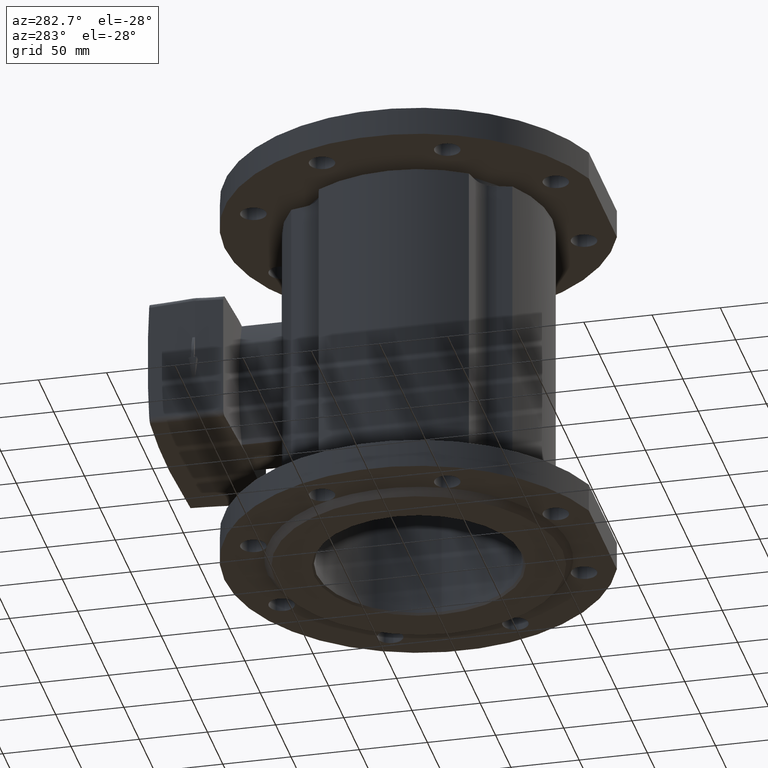
[diagram: clean part render]
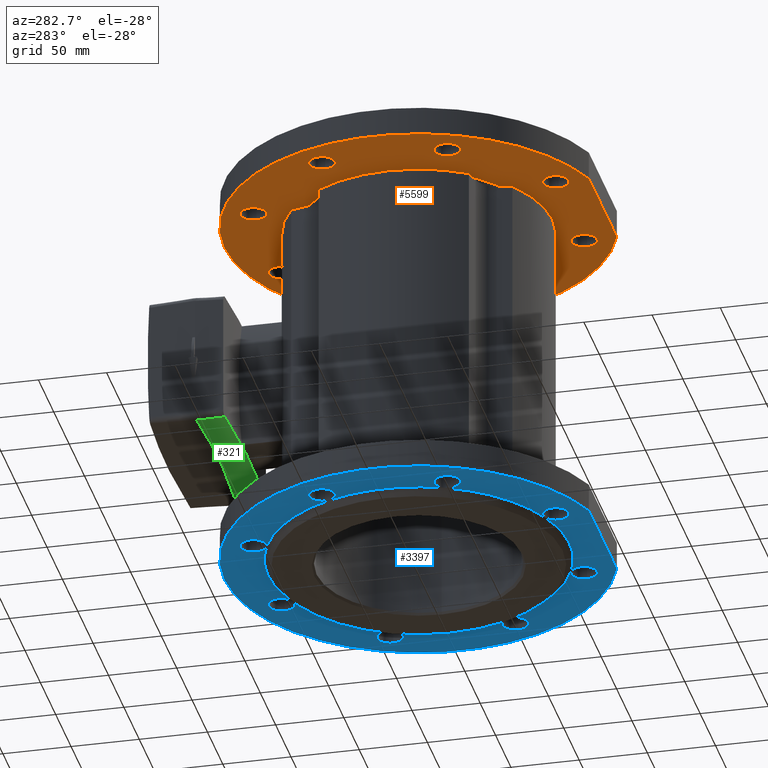
[diagram: same view with three faces highlighted in distinct colors, each labeled with its STEP entity id]
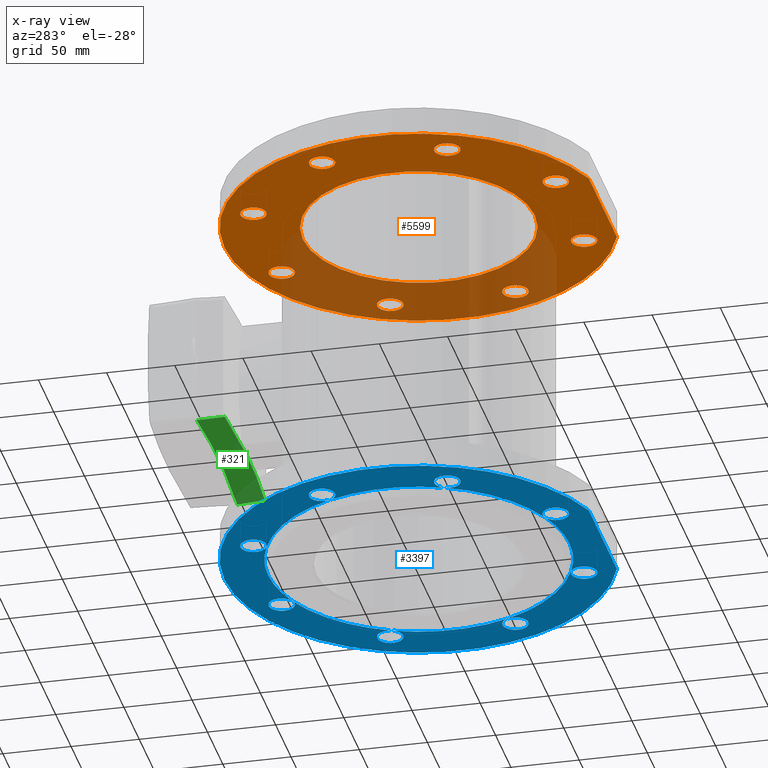
[diagram: x-ray of the same camera — body ghosted, the three highlighted faces saturated]
A machine part, auxiliary view with three faces highlighted in distinct colors.
The next image is the same camera in x-ray (body ghosted, the three faces saturated) — at least one of them is partly hidden behind the body in this view.
Their STEP definitions:

[orange] entity #5599 — the highlighted planar face has unit normal (0, -0, -1).
#11 = PLANE ( 'NONE',  #1680 ) ;
#12 = VERTEX_POINT ( 'NONE', #2074 ) ;
#20 = DIRECTION ( 'NONE',  ( 1.000000000000000000, 0.0000000000000000000, 0.0000000000000000000 ) ) ;
#40 = DIRECTION ( 'NONE',  ( -0.0000000000000000000, -2.925615526614575854E-17, -1.000000000000000000 ) ) ;
#59 = DIRECTION ( 'NONE',  ( -0.0000000000000000000, -2.925615526614575854E-17, -1.000000000000000000 ) ) ;
#74 = AXIS2_PLACEMENT_3D ( 'NONE', #4614, #4555, #2000 ) ;
#140 = DIRECTION ( 'NONE',  ( 0.0000000000000000000, -2.925615526614575854E-17, -1.000000000000000000 ) ) ;
#153 = CARTESIAN_POINT ( 'NONE',  ( -110.8655439013391515, -45.92201188381653765, 123.9999999999999432 ) ) ;
#154 = AXIS2_PLACEMENT_3D ( 'NONE', #5292, #632, #6285 ) ;
#197 = DIRECTION ( 'NONE',  ( -0.0000000000000000000, -2.925615526614575854E-17, -1.000000000000000000 ) ) ;
#200 = CARTESIAN_POINT ( 'NONE',  ( 120.3655439013696338, -45.92201188379594612, 123.9999999999999432 ) ) ;
#215 = DIRECTION ( 'NONE',  ( 0.0000000000000000000, 1.000000000000000000, 0.0000000000000000000 ) ) ;
#222 = ORIENTED_EDGE ( 'NONE', *, *, #4235, .F. ) ;
#249 = CARTESIAN_POINT ( 'NONE',  ( -120.3655439013477064, 45.92201188380499843, 123.9999999999999432 ) ) ;
#317 = DIRECTION ( 'NONE',  ( -0.0000000000000000000, -2.925615526614575854E-17, -1.000000000000000000 ) ) ;
#368 = AXIS2_PLACEMENT_3D ( 'NONE', #2613, #1588, #5136 ) ;
#374 = DIRECTION ( 'NONE',  ( 0.0000000000000000000, 1.000000000000000000, 0.0000000000000000000 ) ) ;
#402 = CIRCLE ( 'NONE', #2098, 9.499999999999994671 ) ;
#421 = CARTESIAN_POINT ( 'NONE',  ( 0.0000000000000000000, 3.627763253002072309E-15, 123.9999999999999574 ) ) ;
#445 = EDGE_CURVE ( 'NONE', #2967, #5342, #997, .T. ) ;
#483 = EDGE_CURVE ( 'NONE', #520, #1567, #3448, .T. ) ;
#485 = EDGE_LOOP ( 'NONE', ( #2946, #1189 ) ) ;
#490 = CIRCLE ( 'NONE', #2095, 9.499999999999994671 ) ;
#492 = EDGE_CURVE ( 'NONE', #3572, #2052, #3876, .T. ) ;
#520 = VERTEX_POINT ( 'NONE', #4407 ) ;
#523 = FACE_BOUND ( 'NONE', #485, .T. ) ;
#550 = FACE_BOUND ( 'NONE', #4692, .T. ) ;
#551 = EDGE_LOOP ( 'NONE', ( #1008, #5395 ) ) ;
#621 = FACE_BOUND ( 'NONE', #3066, .T. ) ;
#632 = DIRECTION ( 'NONE',  ( -0.0000000000000000000, -2.925615526614575854E-17, -1.000000000000000000 ) ) ;
#682 = AXIS2_PLACEMENT_3D ( 'NONE', #2381, #900, #3409 ) ;
#757 = CARTESIAN_POINT ( 'NONE',  ( 55.42201188381146437, 110.8655439013632105, 123.9999999999999432 ) ) ;
#900 = DIRECTION ( 'NONE',  ( -0.0000000000000000000, -2.925615526614575854E-17, -1.000000000000000000 ) ) ;
#905 = AXIS2_PLACEMENT_3D ( 'NONE', #5667, #1518, #4677 ) ;
#962 = ORIENTED_EDGE ( 'NONE', *, *, #2567, .F. ) ;
#997 = CIRCLE ( 'NONE', #3553, 9.499999999999994671 ) ;
#1003 = AXIS2_PLACEMENT_3D ( 'NONE', #3898, #1265, #2774 ) ;
#1008 = ORIENTED_EDGE ( 'NONE', *, *, #483, .F. ) ;
#1063 = LINE ( 'NONE', #4562, #1996 ) ;
#1118 = EDGE_CURVE ( 'NONE', #2247, #2813, #2609, .T. ) ;
#1124 = ORIENTED_EDGE ( 'NONE', *, *, #1661, .F. ) ;
#1128 = CIRCLE ( 'NONE', #905, 9.499999999999994671 ) ;
#1132 = ORIENTED_EDGE ( 'NONE', *, *, #2007, .F. ) ;
#1167 = EDGE_CURVE ( 'NONE', #5135, #2247, #1762, .T. ) ;
#1189 = ORIENTED_EDGE ( 'NONE', *, *, #2722, .F. ) ;
#1190 = VERTEX_POINT ( 'NONE', #5792 ) ;
#1205 = VERTEX_POINT ( 'NONE', #757 ) ;
#1229 = EDGE_CURVE ( 'NONE', #2052, #3572, #4307, .T. ) ;
#1235 = AXIS2_PLACEMENT_3D ( 'NONE', #4348, #3848, #215 ) ;
#1265 = DIRECTION ( 'NONE',  ( -0.0000000000000000000, -2.925615526614575854E-17, -1.000000000000000000 ) ) ;
#1344 = CARTESIAN_POINT ( 'NONE',  ( -110.8655439013391515, -45.92201188381653765, 123.9999999999999432 ) ) ;
#1367 = ORIENTED_EDGE ( 'NONE', *, *, #1598, .F. ) ;
#1518 = DIRECTION ( 'NONE',  ( -0.0000000000000000000, -2.925615526614575854E-17, -1.000000000000000000 ) ) ;
#1567 = VERTEX_POINT ( 'NONE', #249 ) ;
#1583 = VERTEX_POINT ( 'NONE', #2825 ) ;
#1588 = DIRECTION ( 'NONE',  ( -0.0000000000000000000, -2.925615526614575854E-17, -1.000000000000000000 ) ) ;
#1598 = EDGE_CURVE ( 'NONE', #4265, #3329, #4410, .T. ) ;
#1657 = FACE_BOUND ( 'NONE', #5338, .T. ) ;
#1661 = EDGE_CURVE ( 'NONE', #12, #6030, #5364, .T. ) ;
#1680 = AXIS2_PLACEMENT_3D ( 'NONE', #3722, #140, #2062 ) ;
#1724 = ORIENTED_EDGE ( 'NONE', *, *, #1167, .T. ) ;
#1738 = DIRECTION ( 'NONE',  ( 0.0000000000000000000, 1.000000000000000000, 0.0000000000000000000 ) ) ;
#1762 = CIRCLE ( 'NONE', #6318, 142.4999999999999716 ) ;
#1765 = EDGE_LOOP ( 'NONE', ( #4870, #2666 ) ) ;
#1771 = CARTESIAN_POINT ( 'NONE',  ( -55.42201188378950860, -110.8655439013541439, 123.9999999999999432 ) ) ;
#1819 = DIRECTION ( 'NONE',  ( -0.0000000000000000000, -2.925615526614575854E-17, -1.000000000000000000 ) ) ;
#1854 = AXIS2_PLACEMENT_3D ( 'NONE', #3440, #1819, #1918 ) ;
#1918 = DIRECTION ( 'NONE',  ( 0.0000000000000000000, 1.000000000000000000, 0.0000000000000000000 ) ) ;
#1996 = VECTOR ( 'NONE', #20, 1000.000000000000000 ) ;
#2000 = DIRECTION ( 'NONE',  ( 0.0000000000000000000, 1.000000000000000000, 0.0000000000000000000 ) ) ;
#2007 = EDGE_CURVE ( 'NONE', #5210, #6402, #5901, .T. ) ;
#2009 = CIRCLE ( 'NONE', #4447, 84.99999999999998579 ) ;
#2049 = DIRECTION ( 'NONE',  ( -0.0000000000000000000, -2.925615526614575854E-17, -1.000000000000000000 ) ) ;
#2052 = VERTEX_POINT ( 'NONE', #1771 ) ;
#2062 = DIRECTION ( 'NONE',  ( 0.0000000000000000000, 1.000000000000000000, -2.925615526614575854E-17 ) ) ;
#2074 = CARTESIAN_POINT ( 'NONE',  ( -55.42201188381007881, 110.8655439013546840, 123.9999999999999432 ) ) ;
#2095 = AXIS2_PLACEMENT_3D ( 'NONE', #3851, #5875, #2852 ) ;
#2098 = AXIS2_PLACEMENT_3D ( 'NONE', #2585, #40, #4510 ) ;
#2151 = CARTESIAN_POINT ( 'NONE',  ( 45.62071897723644298, -135.0000000000000000, 124.0000000000000000 ) ) ;
#2225 = CARTESIAN_POINT ( 'NONE',  ( 36.42201188381144306, 110.8655439013632105, 123.9999999999999432 ) ) ;
#2247 = VERTEX_POINT ( 'NONE', #6115 ) ;
#2381 = CARTESIAN_POINT ( 'NONE',  ( -110.8655439013477206, 45.92201188380499843, 123.9999999999999432 ) ) ;
#2424 = AXIS2_PLACEMENT_3D ( 'NONE', #421, #2989, #5479 ) ;
#2486 = DIRECTION ( 'NONE',  ( -0.0000000000000000000, -2.925615526614575854E-17, -1.000000000000000000 ) ) ;
#2567 = EDGE_CURVE ( 'NONE', #6030, #12, #490, .T. ) ;
#2585 = CARTESIAN_POINT ( 'NONE',  ( 110.8655439013611073, 45.92201188382560417, 123.9999999999999432 ) ) ;
#2586 = ORIENTED_EDGE ( 'NONE', *, *, #6052, .F. ) ;
#2590 = FACE_OUTER_BOUND ( 'NONE', #3760, .T. ) ;
#2594 = EDGE_CURVE ( 'NONE', #1567, #520, #4109, .T. ) ;
#2609 = CIRCLE ( 'NONE', #3882, 142.4999999999999716 ) ;
#2613 = CARTESIAN_POINT ( 'NONE',  ( -45.92201188381008592, 110.8655439013546840, 123.9999999999999432 ) ) ;
#2636 = CIRCLE ( 'NONE', #2845, 9.499999999999994671 ) ;
#2666 = ORIENTED_EDGE ( 'NONE', *, *, #1229, .F. ) ;
#2722 = EDGE_CURVE ( 'NONE', #5179, #1205, #5806, .T. ) ;
#2743 = AXIS2_PLACEMENT_3D ( 'NONE', #153, #3263, #2793 ) ;
#2774 = DIRECTION ( 'NONE',  ( 0.0000000000000000000, 1.000000000000000000, 0.0000000000000000000 ) ) ;
#2793 = DIRECTION ( 'NONE',  ( 0.0000000000000000000, 1.000000000000000000, 0.0000000000000000000 ) ) ;
#2813 = VERTEX_POINT ( 'NONE', #2151 ) ;
#2822 = DIRECTION ( 'NONE',  ( 0.0000000000000000000, 1.000000000000000000, 0.0000000000000000000 ) ) ;
#2825 = CARTESIAN_POINT ( 'NONE',  ( 36.42201188383204169, -110.8655439013456032, 123.9999999999999432 ) ) ;
#2839 = EDGE_CURVE ( 'NONE', #3329, #4265, #1128, .T. ) ;
#2845 = AXIS2_PLACEMENT_3D ( 'NONE', #6596, #2049, #4072 ) ;
#2852 = DIRECTION ( 'NONE',  ( 0.0000000000000000000, 1.000000000000000000, 0.0000000000000000000 ) ) ;
#2938 = AXIS2_PLACEMENT_3D ( 'NONE', #5009, #2486, #374 ) ;
#2946 = ORIENTED_EDGE ( 'NONE', *, *, #4800, .F. ) ;
#2967 = VERTEX_POINT ( 'NONE', #5361 ) ;
#2989 = DIRECTION ( 'NONE',  ( -0.0000000000000000000, -2.925615526614575854E-17, -1.000000000000000000 ) ) ;
#3016 = ORIENTED_EDGE ( 'NONE', *, *, #3571, .F. ) ;
#3066 = EDGE_LOOP ( 'NONE', ( #6227, #222 ) ) ;
#3088 = FACE_BOUND ( 'NONE', #1765, .T. ) ;
#3133 = CARTESIAN_POINT ( 'NONE',  ( 0.0000000000000000000, 3.627763253002073098E-15, 123.9999999999999858 ) ) ;
#3263 = DIRECTION ( 'NONE',  ( -0.0000000000000000000, -2.925615526614575854E-17, -1.000000000000000000 ) ) ;
#3329 = VERTEX_POINT ( 'NONE', #6290 ) ;
#3409 = DIRECTION ( 'NONE',  ( 0.0000000000000000000, 1.000000000000000000, 0.0000000000000000000 ) ) ;
#3440 = CARTESIAN_POINT ( 'NONE',  ( -45.92201188378950860, -110.8655439013541439, 123.9999999999999432 ) ) ;
#3448 = CIRCLE ( 'NONE', #682, 9.499999999999994671 ) ;
#3479 = ORIENTED_EDGE ( 'NONE', *, *, #445, .F. ) ;
#3481 = CIRCLE ( 'NONE', #2743, 9.499999999999994671 ) ;
#3485 = DIRECTION ( 'NONE',  ( 0.0000000000000000000, 1.000000000000000000, 0.0000000000000000000 ) ) ;
#3517 = DIRECTION ( 'NONE',  ( -0.0000000000000000000, -2.925615526614575854E-17, -1.000000000000000000 ) ) ;
#3553 = AXIS2_PLACEMENT_3D ( 'NONE', #1344, #4933, #5434 ) ;
#3567 = VERTEX_POINT ( 'NONE', #4134 ) ;
#3571 = EDGE_CURVE ( 'NONE', #5135, #2813, #1063, .T. ) ;
#3572 = VERTEX_POINT ( 'NONE', #4034 ) ;
#3696 = CIRCLE ( 'NONE', #4970, 9.499999999999994671 ) ;
#3698 = EDGE_CURVE ( 'NONE', #5342, #2967, #3481, .T. ) ;
#3722 = CARTESIAN_POINT ( 'NONE',  ( 0.0000000000000000000, 84.99999999999998579, 123.9999999999999716 ) ) ;
#3760 = EDGE_LOOP ( 'NONE', ( #3016, #1724, #5042 ) ) ;
#3809 = EDGE_LOOP ( 'NONE', ( #1367, #5547 ) ) ;
#3848 = DIRECTION ( 'NONE',  ( -0.0000000000000000000, -2.925615526614575854E-17, -1.000000000000000000 ) ) ;
#3851 = CARTESIAN_POINT ( 'NONE',  ( -45.92201188381008592, 110.8655439013546840, 123.9999999999999432 ) ) ;
#3876 = CIRCLE ( 'NONE', #1854, 9.500000000000008882 ) ;
#3882 = AXIS2_PLACEMENT_3D ( 'NONE', #3133, #59, #4729 ) ;
#3898 = CARTESIAN_POINT ( 'NONE',  ( -45.92201188378950860, -110.8655439013541439, 123.9999999999999432 ) ) ;
#3913 = CIRCLE ( 'NONE', #2424, 84.99999999999998579 ) ;
#3972 = EDGE_LOOP ( 'NONE', ( #962, #1124 ) ) ;
#4034 = CARTESIAN_POINT ( 'NONE',  ( -36.42201188378950150, -110.8655439013541439, 123.9999999999999432 ) ) ;
#4072 = DIRECTION ( 'NONE',  ( 0.0000000000000000000, 1.000000000000000000, 0.0000000000000000000 ) ) ;
#4080 = CARTESIAN_POINT ( 'NONE',  ( -45.62071897723643588, -135.0000000000000000, 124.0000000000000000 ) ) ;
#4109 = CIRCLE ( 'NONE', #1235, 9.499999999999994671 ) ;
#4134 = CARTESIAN_POINT ( 'NONE',  ( 0.0000000000000000000, 84.99999999999998579, 123.9999999999999574 ) ) ;
#4235 = EDGE_CURVE ( 'NONE', #1583, #1190, #2636, .T. ) ;
#4265 = VERTEX_POINT ( 'NONE', #200 ) ;
#4307 = CIRCLE ( 'NONE', #1003, 9.500000000000008882 ) ;
#4348 = CARTESIAN_POINT ( 'NONE',  ( -110.8655439013477206, 45.92201188380499843, 123.9999999999999432 ) ) ;
#4407 = CARTESIAN_POINT ( 'NONE',  ( -101.3655439013477206, 45.92201188380499843, 123.9999999999999432 ) ) ;
#4410 = CIRCLE ( 'NONE', #6220, 9.499999999999994671 ) ;
#4447 = AXIS2_PLACEMENT_3D ( 'NONE', #5080, #3517, #3485 ) ;
#4451 = CARTESIAN_POINT ( 'NONE',  ( -36.42201188381009302, 110.8655439013546840, 123.9999999999999432 ) ) ;
#4510 = DIRECTION ( 'NONE',  ( 0.0000000000000000000, 1.000000000000000000, 0.0000000000000000000 ) ) ;
#4555 = DIRECTION ( 'NONE',  ( -0.0000000000000000000, -2.925615526614575854E-17, -1.000000000000000000 ) ) ;
#4562 = CARTESIAN_POINT ( 'NONE',  ( 0.0000000000000000000, -135.0000000000000000, 123.9999999999999716 ) ) ;
#4612 = FACE_BOUND ( 'NONE', #3972, .T. ) ;
#4614 = CARTESIAN_POINT ( 'NONE',  ( 45.92201188381145016, 110.8655439013632105, 123.9999999999999432 ) ) ;
#4677 = DIRECTION ( 'NONE',  ( 0.0000000000000000000, 1.000000000000000000, 0.0000000000000000000 ) ) ;
#4692 = EDGE_LOOP ( 'NONE', ( #6425, #1132 ) ) ;
#4710 = CARTESIAN_POINT ( 'NONE',  ( 101.3655439013611073, 45.92201188382560417, 123.9999999999999432 ) ) ;
#4729 = DIRECTION ( 'NONE',  ( 0.0000000000000000000, 1.000000000000000000, 0.0000000000000000000 ) ) ;
#4800 = EDGE_CURVE ( 'NONE', #1205, #5179, #5502, .T. ) ;
#4847 = CARTESIAN_POINT ( 'NONE',  ( 110.8655439013696480, -45.92201188379594612, 123.9999999999999432 ) ) ;
#4870 = ORIENTED_EDGE ( 'NONE', *, *, #492, .F. ) ;
#4907 = DIRECTION ( 'NONE',  ( -0.0000000000000000000, -2.925615526614575854E-17, -1.000000000000000000 ) ) ;
#4933 = DIRECTION ( 'NONE',  ( -0.0000000000000000000, -2.925615526614575854E-17, -1.000000000000000000 ) ) ;
#4970 = AXIS2_PLACEMENT_3D ( 'NONE', #5947, #4907, #2822 ) ;
#5009 = CARTESIAN_POINT ( 'NONE',  ( 45.92201188381145016, 110.8655439013632105, 123.9999999999999432 ) ) ;
#5042 = ORIENTED_EDGE ( 'NONE', *, *, #1118, .T. ) ;
#5075 = EDGE_CURVE ( 'NONE', #6402, #5210, #402, .T. ) ;
#5080 = CARTESIAN_POINT ( 'NONE',  ( 0.0000000000000000000, 3.627763253002072309E-15, 123.9999999999999574 ) ) ;
#5135 = VERTEX_POINT ( 'NONE', #4080 ) ;
#5136 = DIRECTION ( 'NONE',  ( 0.0000000000000000000, 1.000000000000000000, 0.0000000000000000000 ) ) ;
#5143 = FACE_BOUND ( 'NONE', #551, .T. ) ;
#5179 = VERTEX_POINT ( 'NONE', #2225 ) ;
#5210 = VERTEX_POINT ( 'NONE', #4710 ) ;
#5258 = CARTESIAN_POINT ( 'NONE',  ( 0.0000000000000000000, 3.627763253002073098E-15, 123.9999999999999858 ) ) ;
#5292 = CARTESIAN_POINT ( 'NONE',  ( 110.8655439013611073, 45.92201188382560417, 123.9999999999999432 ) ) ;
#5338 = EDGE_LOOP ( 'NONE', ( #6245, #3479 ) ) ;
#5342 = VERTEX_POINT ( 'NONE', #5993 ) ;
#5361 = CARTESIAN_POINT ( 'NONE',  ( -120.3655439013391515, -45.92201188381653765, 123.9999999999999432 ) ) ;
#5364 = CIRCLE ( 'NONE', #368, 9.499999999999994671 ) ;
#5395 = ORIENTED_EDGE ( 'NONE', *, *, #2594, .F. ) ;
#5432 = EDGE_LOOP ( 'NONE', ( #6289, #2586 ) ) ;
#5434 = DIRECTION ( 'NONE',  ( 0.0000000000000000000, 1.000000000000000000, 0.0000000000000000000 ) ) ;
#5469 = EDGE_CURVE ( 'NONE', #3567, #5870, #3913, .T. ) ;
#5479 = DIRECTION ( 'NONE',  ( 0.0000000000000000000, 1.000000000000000000, 0.0000000000000000000 ) ) ;
#5502 = CIRCLE ( 'NONE', #74, 9.500000000000008882 ) ;
#5547 = ORIENTED_EDGE ( 'NONE', *, *, #2839, .F. ) ;
#5599 = ADVANCED_FACE ( 'NONE', ( #1657, #3088, #621, #6179, #2590, #523, #550, #5143, #4612, #5674 ), #11, .T. ) ;
#5667 = CARTESIAN_POINT ( 'NONE',  ( 110.8655439013696480, -45.92201188379594612, 123.9999999999999432 ) ) ;
#5674 = FACE_BOUND ( 'NONE', #5432, .T. ) ;
#5792 = CARTESIAN_POINT ( 'NONE',  ( 55.42201188383204169, -110.8655439013456032, 123.9999999999999432 ) ) ;
#5806 = CIRCLE ( 'NONE', #2938, 9.500000000000008882 ) ;
#5819 = DIRECTION ( 'NONE',  ( 0.0000000000000000000, 1.000000000000000000, 0.0000000000000000000 ) ) ;
#5870 = VERTEX_POINT ( 'NONE', #6153 ) ;
#5875 = DIRECTION ( 'NONE',  ( -0.0000000000000000000, -2.925615526614575854E-17, -1.000000000000000000 ) ) ;
#5901 = CIRCLE ( 'NONE', #154, 9.499999999999994671 ) ;
#5947 = CARTESIAN_POINT ( 'NONE',  ( 45.92201188383204169, -110.8655439013456032, 123.9999999999999432 ) ) ;
#5967 = EDGE_CURVE ( 'NONE', #1190, #1583, #3696, .T. ) ;
#5969 = CARTESIAN_POINT ( 'NONE',  ( 120.3655439013611073, 45.92201188382560417, 123.9999999999999432 ) ) ;
#5993 = CARTESIAN_POINT ( 'NONE',  ( -101.3655439013391515, -45.92201188381653765, 123.9999999999999432 ) ) ;
#6030 = VERTEX_POINT ( 'NONE', #4451 ) ;
#6052 = EDGE_CURVE ( 'NONE', #5870, #3567, #2009, .T. ) ;
#6115 = CARTESIAN_POINT ( 'NONE',  ( 0.0000000000000000000, 142.4999999999999716, 123.9999999999999858 ) ) ;
#6153 = CARTESIAN_POINT ( 'NONE',  ( 1.040949779275250021E-14, -84.99999999999998579, 123.9999999999999574 ) ) ;
#6179 = FACE_BOUND ( 'NONE', #3809, .T. ) ;
#6220 = AXIS2_PLACEMENT_3D ( 'NONE', #4847, #317, #5819 ) ;
#6227 = ORIENTED_EDGE ( 'NONE', *, *, #5967, .F. ) ;
#6245 = ORIENTED_EDGE ( 'NONE', *, *, #3698, .F. ) ;
#6285 = DIRECTION ( 'NONE',  ( 0.0000000000000000000, 1.000000000000000000, 0.0000000000000000000 ) ) ;
#6289 = ORIENTED_EDGE ( 'NONE', *, *, #5469, .F. ) ;
#6290 = CARTESIAN_POINT ( 'NONE',  ( 101.3655439013696480, -45.92201188379594612, 123.9999999999999432 ) ) ;
#6318 = AXIS2_PLACEMENT_3D ( 'NONE', #5258, #197, #1738 ) ;
#6402 = VERTEX_POINT ( 'NONE', #5969 ) ;
#6425 = ORIENTED_EDGE ( 'NONE', *, *, #5075, .F. ) ;
#6596 = CARTESIAN_POINT ( 'NONE',  ( 45.92201188383204169, -110.8655439013456032, 123.9999999999999432 ) ) ;

[blue] entity #3397 — the highlighted planar face has unit normal (0, -0, -1).
#35 = ORIENTED_EDGE ( 'NONE', *, *, #1004, .F. ) ;
#38 = AXIS2_PLACEMENT_3D ( 'NONE', #5970, #1410, #2945 ) ;
#81 = DIRECTION ( 'NONE',  ( -0.0000000000000000000, -2.925615526614575854E-17, -1.000000000000000000 ) ) ;
#94 = ORIENTED_EDGE ( 'NONE', *, *, #5652, .F. ) ;
#122 = DIRECTION ( 'NONE',  ( -0.0000000000000000000, -2.925615526614575854E-17, -1.000000000000000000 ) ) ;
#145 = AXIS2_PLACEMENT_3D ( 'NONE', #3168, #122, #5225 ) ;
#178 = AXIS2_PLACEMENT_3D ( 'NONE', #1564, #3959, #3524 ) ;
#189 = ORIENTED_EDGE ( 'NONE', *, *, #531, .F. ) ;
#236 = EDGE_CURVE ( 'NONE', #2005, #5539, #2588, .T. ) ;
#245 = DIRECTION ( 'NONE',  ( 0.0000000000000000000, 1.000000000000000000, 0.0000000000000000000 ) ) ;
#246 = CARTESIAN_POINT ( 'NONE',  ( -45.92201188378950860, -110.8655439013541439, -144.9999999999999716 ) ) ;
#261 = PLANE ( 'NONE',  #3904 ) ;
#270 = AXIS2_PLACEMENT_3D ( 'NONE', #418, #3381, #805 ) ;
#278 = DIRECTION ( 'NONE',  ( -0.0000000000000000000, -2.925615526614575854E-17, -1.000000000000000000 ) ) ;
#284 = CARTESIAN_POINT ( 'NONE',  ( -120.3655439013391515, -45.92201188381653765, -144.9999999999999716 ) ) ;
#291 = AXIS2_PLACEMENT_3D ( 'NONE', #1493, #1389, #6013 ) ;
#406 = VERTEX_POINT ( 'NONE', #4376 ) ;
#418 = CARTESIAN_POINT ( 'NONE',  ( 0.0000000000000000000, -4.242142513591133356E-15, -144.9999999999999716 ) ) ;
#422 = VERTEX_POINT ( 'NONE', #4901 ) ;
#499 = DIRECTION ( 'NONE',  ( 0.0000000000000000000, 1.000000000000000000, 0.0000000000000000000 ) ) ;
#501 = CIRCLE ( 'NONE', #3373, 9.499999999999994671 ) ;
#531 = EDGE_CURVE ( 'NONE', #881, #406, #5038, .T. ) ;
#543 = VERTEX_POINT ( 'NONE', #1848 ) ;
#547 = EDGE_CURVE ( 'NONE', #5129, #5787, #2075, .T. ) ;
#595 = DIRECTION ( 'NONE',  ( -0.0000000000000000000, -2.925615526614575854E-17, -1.000000000000000000 ) ) ;
#610 = DIRECTION ( 'NONE',  ( 0.0000000000000000000, 1.000000000000000000, 0.0000000000000000000 ) ) ;
#617 = CIRCLE ( 'NONE', #4341, 9.499999999999994671 ) ;
#622 = VERTEX_POINT ( 'NONE', #3974 ) ;
#711 = ORIENTED_EDGE ( 'NONE', *, *, #2473, .F. ) ;
#717 = CARTESIAN_POINT ( 'NONE',  ( 120.3655439013696338, -45.92201188379594612, -144.9999999999999716 ) ) ;
#738 = ORIENTED_EDGE ( 'NONE', *, *, #4519, .T. ) ;
#739 = CARTESIAN_POINT ( 'NONE',  ( 45.92201188381145016, 110.8655439013632105, -144.9999999999999716 ) ) ;
#759 = FACE_OUTER_BOUND ( 'NONE', #1486, .T. ) ;
#765 = DIRECTION ( 'NONE',  ( -0.0000000000000000000, -2.925615526614575854E-17, -1.000000000000000000 ) ) ;
#782 = CIRCLE ( 'NONE', #145, 9.499999999999994671 ) ;
#804 = AXIS2_PLACEMENT_3D ( 'NONE', #958, #3068, #499 ) ;
#805 = DIRECTION ( 'NONE',  ( 0.0000000000000000000, 1.000000000000000000, 0.0000000000000000000 ) ) ;
#807 = AXIS2_PLACEMENT_3D ( 'NONE', #5230, #2215, #4242 ) ;
#815 = AXIS2_PLACEMENT_3D ( 'NONE', #5614, #1553, #6077 ) ;
#816 = CIRCLE ( 'NONE', #2011, 9.499999999999994671 ) ;
#845 = ORIENTED_EDGE ( 'NONE', *, *, #6258, .F. ) ;
#850 = DIRECTION ( 'NONE',  ( 0.0000000000000000000, 1.000000000000000000, 0.0000000000000000000 ) ) ;
#881 = VERTEX_POINT ( 'NONE', #4895 ) ;
#930 = CIRCLE ( 'NONE', #3701, 9.499999999999994671 ) ;
#943 = CARTESIAN_POINT ( 'NONE',  ( 0.0000000000000000000, -4.242142513591133356E-15, -144.9999999999999716 ) ) ;
#958 = CARTESIAN_POINT ( 'NONE',  ( -110.8655439013391515, -45.92201188381653765, -144.9999999999999716 ) ) ;
#979 = CARTESIAN_POINT ( 'NONE',  ( -42.28651927632579088, -102.0886883425040708, -144.9999999999999716 ) ) ;
#1004 = EDGE_CURVE ( 'NONE', #1629, #1755, #1215, .T. ) ;
#1041 = VERTEX_POINT ( 'NONE', #6288 ) ;
#1052 = DIRECTION ( 'NONE',  ( 0.0000000000000000000, 1.000000000000000000, 0.0000000000000000000 ) ) ;
#1087 = EDGE_CURVE ( 'NONE', #4788, #881, #782, .T. ) ;
#1090 = ORIENTED_EDGE ( 'NONE', *, *, #2802, .F. ) ;
#1101 = VERTEX_POINT ( 'NONE', #5657 ) ;
#1102 = CARTESIAN_POINT ( 'NONE',  ( 110.8655439013611073, 45.92201188382560417, -144.9999999999999716 ) ) ;
#1112 = CIRCLE ( 'NONE', #5894, 9.499999999999994671 ) ;
#1130 = DIRECTION ( 'NONE',  ( 0.0000000000000000000, 1.000000000000000000, 0.0000000000000000000 ) ) ;
#1133 = CARTESIAN_POINT ( 'NONE',  ( 0.0000000000000000000, 142.4999999999999716, -144.9999999999999716 ) ) ;
#1134 = AXIS2_PLACEMENT_3D ( 'NONE', #5660, #6067, #4171 ) ;
#1140 = DIRECTION ( 'NONE',  ( -0.0000000000000000000, -2.925615526614575854E-17, -1.000000000000000000 ) ) ;
#1146 = CIRCLE ( 'NONE', #2114, 110.4999999999999858 ) ;
#1173 = ORIENTED_EDGE ( 'NONE', *, *, #1087, .F. ) ;
#1195 = CARTESIAN_POINT ( 'NONE',  ( 102.0886883424932563, 42.28651927635188912, -144.9999999999999716 ) ) ;
#1215 = CIRCLE ( 'NONE', #6522, 9.499999999999994671 ) ;
#1237 = CIRCLE ( 'NONE', #3799, 9.500000000000008882 ) ;
#1311 = DIRECTION ( 'NONE',  ( 0.0000000000000000000, 1.000000000000000000, 0.0000000000000000000 ) ) ;
#1342 = ORIENTED_EDGE ( 'NONE', *, *, #236, .F. ) ;
#1363 = DIRECTION ( 'NONE',  ( -0.0000000000000000000, -2.925615526614575854E-17, -1.000000000000000000 ) ) ;
#1375 = CARTESIAN_POINT ( 'NONE',  ( -36.42201188378950150, -110.8655439013541439, -144.9999999999999716 ) ) ;
#1389 = DIRECTION ( 'NONE',  ( -0.0000000000000000000, -2.925615526614575854E-17, -1.000000000000000000 ) ) ;
#1410 = DIRECTION ( 'NONE',  ( -0.0000000000000000000, -2.925615526614575854E-17, -1.000000000000000000 ) ) ;
#1418 = VECTOR ( 'NONE', #3584, 1000.000000000000000 ) ;
#1433 = CARTESIAN_POINT ( 'NONE',  ( -110.8655439013391515, -45.92201188381653765, -144.9999999999999716 ) ) ;
#1486 = EDGE_LOOP ( 'NONE', ( #1342, #5201, #738 ) ) ;
#1493 = CARTESIAN_POINT ( 'NONE',  ( 110.8655439013611073, 45.92201188382560417, -144.9999999999999716 ) ) ;
#1538 = VERTEX_POINT ( 'NONE', #2791 ) ;
#1548 = CARTESIAN_POINT ( 'NONE',  ( 0.0000000000000000000, -4.242142513591133356E-15, -144.9999999999999716 ) ) ;
#1553 = DIRECTION ( 'NONE',  ( -0.0000000000000000000, -2.925615526614575854E-17, -1.000000000000000000 ) ) ;
#1564 = CARTESIAN_POINT ( 'NONE',  ( 45.92201188381145016, 110.8655439013632105, -144.9999999999999716 ) ) ;
#1581 = EDGE_CURVE ( 'NONE', #2021, #543, #1112, .T. ) ;
#1629 = VERTEX_POINT ( 'NONE', #3888 ) ;
#1642 = DIRECTION ( 'NONE',  ( -0.0000000000000000000, -2.925615526614575854E-17, -1.000000000000000000 ) ) ;
#1647 = ORIENTED_EDGE ( 'NONE', *, *, #5678, .F. ) ;
#1725 = CARTESIAN_POINT ( 'NONE',  ( 45.92201188383204169, -110.8655439013456032, -144.9999999999999716 ) ) ;
#1755 = VERTEX_POINT ( 'NONE', #5071 ) ;
#1761 = CARTESIAN_POINT ( 'NONE',  ( -45.92201188378950860, -110.8655439013541439, -144.9999999999999716 ) ) ;
#1772 = AXIS2_PLACEMENT_3D ( 'NONE', #4981, #3884, #1311 ) ;
#1775 = ORIENTED_EDGE ( 'NONE', *, *, #5277, .F. ) ;
#1848 = CARTESIAN_POINT ( 'NONE',  ( -101.3655439013391515, -45.92201188381653765, -144.9999999999999716 ) ) ;
#2005 = VERTEX_POINT ( 'NONE', #5758 ) ;
#2011 = AXIS2_PLACEMENT_3D ( 'NONE', #3764, #4233, #2238 ) ;
#2014 = VERTEX_POINT ( 'NONE', #1195 ) ;
#2021 = VERTEX_POINT ( 'NONE', #4795 ) ;
#2045 = ORIENTED_EDGE ( 'NONE', *, *, #6144, .F. ) ;
#2075 = CIRCLE ( 'NONE', #3773, 9.499999999999994671 ) ;
#2104 = CARTESIAN_POINT ( 'NONE',  ( 36.42201188383204169, -110.8655439013456032, -144.9999999999999716 ) ) ;
#2114 = AXIS2_PLACEMENT_3D ( 'NONE', #6207, #4153, #6177 ) ;
#2200 = AXIS2_PLACEMENT_3D ( 'NONE', #943, #4477, #6502 ) ;
#2206 = CIRCLE ( 'NONE', #1134, 9.499999999999994671 ) ;
#2215 = DIRECTION ( 'NONE',  ( -0.0000000000000000000, -2.925615526614575854E-17, -1.000000000000000000 ) ) ;
#2227 = CARTESIAN_POINT ( 'NONE',  ( 42.28651927634008700, 102.0886883424981448, -144.9999999999999716 ) ) ;
#2235 = DIRECTION ( 'NONE',  ( 0.0000000000000000000, 1.000000000000000000, 0.0000000000000000000 ) ) ;
#2238 = DIRECTION ( 'NONE',  ( 0.0000000000000000000, 1.000000000000000000, 0.0000000000000000000 ) ) ;
#2305 = DIRECTION ( 'NONE',  ( 0.0000000000000000000, -2.925615526614575854E-17, -1.000000000000000000 ) ) ;
#2322 = DIRECTION ( 'NONE',  ( 0.0000000000000000000, 1.000000000000000000, 0.0000000000000000000 ) ) ;
#2369 = ORIENTED_EDGE ( 'NONE', *, *, #5553, .F. ) ;
#2385 = EDGE_CURVE ( 'NONE', #5445, #3100, #5697, .T. ) ;
#2426 = DIRECTION ( 'NONE',  ( -0.0000000000000000000, -2.925615526614575854E-17, -1.000000000000000000 ) ) ;
#2433 = CIRCLE ( 'NONE', #4547, 110.4999999999999858 ) ;
#2453 = DIRECTION ( 'NONE',  ( 0.0000000000000000000, 1.000000000000000000, 0.0000000000000000000 ) ) ;
#2461 = CARTESIAN_POINT ( 'NONE',  ( 45.62071897723644298, -135.0000000000000000, -144.9999999999999716 ) ) ;
#2464 = CARTESIAN_POINT ( 'NONE',  ( 101.3655439013696480, -45.92201188379594612, -144.9999999999999716 ) ) ;
#2473 = EDGE_CURVE ( 'NONE', #5787, #622, #2831, .T. ) ;
#2523 = EDGE_CURVE ( 'NONE', #2005, #5700, #4315, .T. ) ;
#2536 = CARTESIAN_POINT ( 'NONE',  ( -42.28651927634178520, 102.0886883424974343, -144.9999999999999716 ) ) ;
#2546 = ORIENTED_EDGE ( 'NONE', *, *, #5610, .F. ) ;
#2559 = DIRECTION ( 'NONE',  ( 0.0000000000000000000, 1.000000000000000000, 0.0000000000000000000 ) ) ;
#2573 = EDGE_CURVE ( 'NONE', #5445, #2021, #6020, .T. ) ;
#2578 = CARTESIAN_POINT ( 'NONE',  ( 0.0000000000000000000, -4.242142513591133356E-15, -144.9999999999999716 ) ) ;
#2588 = LINE ( 'NONE', #6078, #1418 ) ;
#2599 = ORIENTED_EDGE ( 'NONE', *, *, #2573, .F. ) ;
#2605 = VERTEX_POINT ( 'NONE', #717 ) ;
#2624 = CIRCLE ( 'NONE', #6230, 9.500000000000008882 ) ;
#2659 = CARTESIAN_POINT ( 'NONE',  ( 45.92201188381145016, 110.8655439013632105, -144.9999999999999716 ) ) ;
#2688 = DIRECTION ( 'NONE',  ( -0.0000000000000000000, -2.925615526614575854E-17, -1.000000000000000000 ) ) ;
#2694 = EDGE_CURVE ( 'NONE', #422, #5445, #4215, .T. ) ;
#2718 = ORIENTED_EDGE ( 'NONE', *, *, #6087, .F. ) ;
#2736 = CIRCLE ( 'NONE', #6130, 110.4999999999999858 ) ;
#2753 = AXIS2_PLACEMENT_3D ( 'NONE', #1725, #2688, #4712 ) ;
#2791 = CARTESIAN_POINT ( 'NONE',  ( -102.0886883424981590, 42.28651927634006569, -144.9999999999999716 ) ) ;
#2802 = EDGE_CURVE ( 'NONE', #3100, #4041, #5371, .T. ) ;
#2816 = CARTESIAN_POINT ( 'NONE',  ( 0.0000000000000000000, -4.242142513591133356E-15, -144.9999999999999716 ) ) ;
#2831 = CIRCLE ( 'NONE', #1772, 110.4999999999999858 ) ;
#2841 = CIRCLE ( 'NONE', #804, 9.499999999999994671 ) ;
#2846 = EDGE_CURVE ( 'NONE', #2014, #881, #3260, .T. ) ;
#2868 = DIRECTION ( 'NONE',  ( 0.0000000000000000000, 1.000000000000000000, 0.0000000000000000000 ) ) ;
#2926 = ORIENTED_EDGE ( 'NONE', *, *, #2961, .F. ) ;
#2932 = AXIS2_PLACEMENT_3D ( 'NONE', #246, #5750, #3190 ) ;
#2940 = CIRCLE ( 'NONE', #4644, 9.499999999999994671 ) ;
#2941 = AXIS2_PLACEMENT_3D ( 'NONE', #4463, #6417, #4956 ) ;
#2945 = DIRECTION ( 'NONE',  ( 0.0000000000000000000, 1.000000000000000000, 0.0000000000000000000 ) ) ;
#2961 = EDGE_CURVE ( 'NONE', #6262, #3649, #2624, .T. ) ;
#3049 = CARTESIAN_POINT ( 'NONE',  ( -36.42201188381009302, 110.8655439013546840, -144.9999999999999716 ) ) ;
#3061 = CIRCLE ( 'NONE', #4020, 142.4999999999999716 ) ;
#3068 = DIRECTION ( 'NONE',  ( -0.0000000000000000000, -2.925615526614575854E-17, -1.000000000000000000 ) ) ;
#3100 = VERTEX_POINT ( 'NONE', #1375 ) ;
#3106 = ORIENTED_EDGE ( 'NONE', *, *, #6089, .F. ) ;
#3168 = CARTESIAN_POINT ( 'NONE',  ( 110.8655439013696480, -45.92201188379594612, -144.9999999999999716 ) ) ;
#3171 = DIRECTION ( 'NONE',  ( 0.0000000000000000000, 1.000000000000000000, -2.925615526614575854E-17 ) ) ;
#3190 = DIRECTION ( 'NONE',  ( 0.0000000000000000000, 1.000000000000000000, 0.0000000000000000000 ) ) ;
#3260 = CIRCLE ( 'NONE', #4535, 110.4999999999999858 ) ;
#3261 = DIRECTION ( 'NONE',  ( -0.0000000000000000000, -2.925615526614575854E-17, -1.000000000000000000 ) ) ;
#3264 = EDGE_CURVE ( 'NONE', #1538, #1629, #2206, .T. ) ;
#3343 = ORIENTED_EDGE ( 'NONE', *, *, #3590, .F. ) ;
#3362 = CARTESIAN_POINT ( 'NONE',  ( 55.42201188383204169, -110.8655439013456032, -144.9999999999999716 ) ) ;
#3372 = CIRCLE ( 'NONE', #4234, 9.500000000000008882 ) ;
#3373 = AXIS2_PLACEMENT_3D ( 'NONE', #6518, #4997, #2868 ) ;
#3381 = DIRECTION ( 'NONE',  ( -0.0000000000000000000, -2.925615526614575854E-17, -1.000000000000000000 ) ) ;
#3397 = ADVANCED_FACE ( 'NONE', ( #759, #4825 ), #261, .T. ) ;
#3406 = EDGE_CURVE ( 'NONE', #622, #6262, #6557, .T. ) ;
#3469 = CARTESIAN_POINT ( 'NONE',  ( -110.8655439013477206, 45.92201188380499843, -144.9999999999999716 ) ) ;
#3524 = DIRECTION ( 'NONE',  ( 0.0000000000000000000, 1.000000000000000000, 0.0000000000000000000 ) ) ;
#3539 = ORIENTED_EDGE ( 'NONE', *, *, #6472, .F. ) ;
#3547 = VERTEX_POINT ( 'NONE', #2104 ) ;
#3584 = DIRECTION ( 'NONE',  ( 1.000000000000000000, 0.0000000000000000000, 0.0000000000000000000 ) ) ;
#3590 = EDGE_CURVE ( 'NONE', #5980, #2021, #2841, .T. ) ;
#3649 = VERTEX_POINT ( 'NONE', #4622 ) ;
#3659 = CARTESIAN_POINT ( 'NONE',  ( 0.0000000000000000000, -4.242142513591133356E-15, -144.9999999999999716 ) ) ;
#3668 = DIRECTION ( 'NONE',  ( 0.0000000000000000000, 1.000000000000000000, 0.0000000000000000000 ) ) ;
#3701 = AXIS2_PLACEMENT_3D ( 'NONE', #5476, #4481, #5512 ) ;
#3764 = CARTESIAN_POINT ( 'NONE',  ( -110.8655439013477206, 45.92201188380499843, -144.9999999999999716 ) ) ;
#3773 = AXIS2_PLACEMENT_3D ( 'NONE', #4974, #3879, #2453 ) ;
#3799 = AXIS2_PLACEMENT_3D ( 'NONE', #1761, #5309, #245 ) ;
#3826 = CARTESIAN_POINT ( 'NONE',  ( -110.8655439013391515, -45.92201188381653765, -144.9999999999999716 ) ) ;
#3879 = DIRECTION ( 'NONE',  ( -0.0000000000000000000, -2.925615526614575854E-17, -1.000000000000000000 ) ) ;
#3884 = DIRECTION ( 'NONE',  ( -0.0000000000000000000, -2.925615526614575854E-17, -1.000000000000000000 ) ) ;
#3888 = CARTESIAN_POINT ( 'NONE',  ( -120.3655439013477064, 45.92201188380499843, -144.9999999999999716 ) ) ;
#3904 = AXIS2_PLACEMENT_3D ( 'NONE', #1133, #2305, #3171 ) ;
#3959 = DIRECTION ( 'NONE',  ( -0.0000000000000000000, -2.925615526614575854E-17, -1.000000000000000000 ) ) ;
#3974 = CARTESIAN_POINT ( 'NONE',  ( 1.353234713057825123E-14, 110.4999999999999858, -144.9999999999999716 ) ) ;
#3992 = VERTEX_POINT ( 'NONE', #6298 ) ;
#4019 = AXIS2_PLACEMENT_3D ( 'NONE', #6449, #4328, #4361 ) ;
#4020 = AXIS2_PLACEMENT_3D ( 'NONE', #3659, #595, #5124 ) ;
#4041 = VERTEX_POINT ( 'NONE', #6332 ) ;
#4125 = CIRCLE ( 'NONE', #5825, 9.499999999999994671 ) ;
#4153 = DIRECTION ( 'NONE',  ( -0.0000000000000000000, -2.925615526614575854E-17, -1.000000000000000000 ) ) ;
#4171 = DIRECTION ( 'NONE',  ( 0.0000000000000000000, 1.000000000000000000, 0.0000000000000000000 ) ) ;
#4176 = ORIENTED_EDGE ( 'NONE', *, *, #2846, .F. ) ;
#4177 = DIRECTION ( 'NONE',  ( -0.0000000000000000000, -2.925615526614575854E-17, -1.000000000000000000 ) ) ;
#4194 = ORIENTED_EDGE ( 'NONE', *, *, #5084, .F. ) ;
#4201 = EDGE_CURVE ( 'NONE', #6262, #2014, #6447, .T. ) ;
#4215 = CIRCLE ( 'NONE', #2200, 110.4999999999999858 ) ;
#4233 = DIRECTION ( 'NONE',  ( -0.0000000000000000000, -2.925615526614575854E-17, -1.000000000000000000 ) ) ;
#4234 = AXIS2_PLACEMENT_3D ( 'NONE', #2659, #81, #5713 ) ;
#4237 = CIRCLE ( 'NONE', #2753, 9.499999999999994671 ) ;
#4242 = DIRECTION ( 'NONE',  ( 0.0000000000000000000, 1.000000000000000000, 0.0000000000000000000 ) ) ;
#4259 = ORIENTED_EDGE ( 'NONE', *, *, #2694, .F. ) ;
#4299 = EDGE_CURVE ( 'NONE', #5787, #1101, #4965, .T. ) ;
#4315 = CIRCLE ( 'NONE', #270, 142.4999999999999716 ) ;
#4328 = DIRECTION ( 'NONE',  ( -0.0000000000000000000, -2.925615526614575854E-17, -1.000000000000000000 ) ) ;
#4341 = AXIS2_PLACEMENT_3D ( 'NONE', #1102, #1140, #6100 ) ;
#4349 = EDGE_CURVE ( 'NONE', #1041, #2014, #501, .T. ) ;
#4361 = DIRECTION ( 'NONE',  ( 0.0000000000000000000, 1.000000000000000000, 0.0000000000000000000 ) ) ;
#4376 = CARTESIAN_POINT ( 'NONE',  ( 42.28651927636200014, -102.0886883424890641, -144.9999999999999716 ) ) ;
#4427 = VERTEX_POINT ( 'NONE', #3362 ) ;
#4463 = CARTESIAN_POINT ( 'NONE',  ( 0.0000000000000000000, -4.242142513591133356E-15, -144.9999999999999716 ) ) ;
#4465 = DIRECTION ( 'NONE',  ( -0.0000000000000000000, -2.925615526614575854E-17, -1.000000000000000000 ) ) ;
#4477 = DIRECTION ( 'NONE',  ( -0.0000000000000000000, -2.925615526614575854E-17, -1.000000000000000000 ) ) ;
#4481 = DIRECTION ( 'NONE',  ( -0.0000000000000000000, -2.925615526614575854E-17, -1.000000000000000000 ) ) ;
#4519 = EDGE_CURVE ( 'NONE', #5700, #5539, #3061, .T. ) ;
#4523 = VERTEX_POINT ( 'NONE', #5056 ) ;
#4535 = AXIS2_PLACEMENT_3D ( 'NONE', #1548, #4177, #5606 ) ;
#4547 = AXIS2_PLACEMENT_3D ( 'NONE', #4549, #6108, #1052 ) ;
#4549 = CARTESIAN_POINT ( 'NONE',  ( 0.0000000000000000000, -4.242142513591133356E-15, -144.9999999999999716 ) ) ;
#4571 = ORIENTED_EDGE ( 'NONE', *, *, #6069, .F. ) ;
#4579 = EDGE_CURVE ( 'NONE', #1755, #1538, #816, .T. ) ;
#4622 = CARTESIAN_POINT ( 'NONE',  ( 36.42201188381144306, 110.8655439013632105, -144.9999999999999716 ) ) ;
#4644 = AXIS2_PLACEMENT_3D ( 'NONE', #1433, #4465, #5331 ) ;
#4712 = DIRECTION ( 'NONE',  ( 0.0000000000000000000, 1.000000000000000000, 0.0000000000000000000 ) ) ;
#4788 = VERTEX_POINT ( 'NONE', #2464 ) ;
#4795 = CARTESIAN_POINT ( 'NONE',  ( -102.0886883424932563, -42.28651927635191754, -144.9999999999999716 ) ) ;
#4825 = FACE_BOUND ( 'NONE', #5511, .T. ) ;
#4831 = ORIENTED_EDGE ( 'NONE', *, *, #6165, .F. ) ;
#4846 = AXIS2_PLACEMENT_3D ( 'NONE', #2816, #278, #2322 ) ;
#4868 = CIRCLE ( 'NONE', #6567, 9.499999999999994671 ) ;
#4895 = CARTESIAN_POINT ( 'NONE',  ( 102.0886883425040565, -42.28651927632579799, -144.9999999999999716 ) ) ;
#4896 = ORIENTED_EDGE ( 'NONE', *, *, #2385, .F. ) ;
#4901 = CARTESIAN_POINT ( 'NONE',  ( 0.0000000000000000000, -110.4999999999999858, -144.9999999999999716 ) ) ;
#4939 = EDGE_CURVE ( 'NONE', #4041, #5445, #1237, .T. ) ;
#4951 = CARTESIAN_POINT ( 'NONE',  ( 45.92201188383204169, -110.8655439013456032, -144.9999999999999716 ) ) ;
#4956 = DIRECTION ( 'NONE',  ( 0.0000000000000000000, 1.000000000000000000, 0.0000000000000000000 ) ) ;
#4965 = CIRCLE ( 'NONE', #807, 9.499999999999994671 ) ;
#4974 = CARTESIAN_POINT ( 'NONE',  ( -45.92201188381008592, 110.8655439013546840, -144.9999999999999716 ) ) ;
#4981 = CARTESIAN_POINT ( 'NONE',  ( 0.0000000000000000000, -4.242142513591133356E-15, -144.9999999999999716 ) ) ;
#4997 = DIRECTION ( 'NONE',  ( -0.0000000000000000000, -2.925615526614575854E-17, -1.000000000000000000 ) ) ;
#5038 = CIRCLE ( 'NONE', #38, 110.4999999999999858 ) ;
#5056 = CARTESIAN_POINT ( 'NONE',  ( 101.3655439013611073, 45.92201188382560417, -144.9999999999999716 ) ) ;
#5071 = CARTESIAN_POINT ( 'NONE',  ( -101.3655439013477206, 45.92201188380499843, -144.9999999999999716 ) ) ;
#5084 = EDGE_CURVE ( 'NONE', #1538, #5787, #2736, .T. ) ;
#5124 = DIRECTION ( 'NONE',  ( 0.0000000000000000000, 1.000000000000000000, 0.0000000000000000000 ) ) ;
#5129 = VERTEX_POINT ( 'NONE', #3049 ) ;
#5139 = DIRECTION ( 'NONE',  ( 0.0000000000000000000, 1.000000000000000000, 0.0000000000000000000 ) ) ;
#5167 = ORIENTED_EDGE ( 'NONE', *, *, #3264, .F. ) ;
#5201 = ORIENTED_EDGE ( 'NONE', *, *, #2523, .T. ) ;
#5225 = DIRECTION ( 'NONE',  ( 0.0000000000000000000, 1.000000000000000000, 0.0000000000000000000 ) ) ;
#5230 = CARTESIAN_POINT ( 'NONE',  ( -45.92201188381008592, 110.8655439013546840, -144.9999999999999716 ) ) ;
#5237 = DIRECTION ( 'NONE',  ( 0.0000000000000000000, 1.000000000000000000, 0.0000000000000000000 ) ) ;
#5277 = EDGE_CURVE ( 'NONE', #543, #5980, #2940, .T. ) ;
#5309 = DIRECTION ( 'NONE',  ( -0.0000000000000000000, -2.925615526614575854E-17, -1.000000000000000000 ) ) ;
#5331 = DIRECTION ( 'NONE',  ( 0.0000000000000000000, 1.000000000000000000, 0.0000000000000000000 ) ) ;
#5371 = CIRCLE ( 'NONE', #5375, 9.500000000000008882 ) ;
#5375 = AXIS2_PLACEMENT_3D ( 'NONE', #5572, #6203, #610 ) ;
#5382 = ORIENTED_EDGE ( 'NONE', *, *, #4939, .F. ) ;
#5384 = ORIENTED_EDGE ( 'NONE', *, *, #4349, .F. ) ;
#5445 = VERTEX_POINT ( 'NONE', #979 ) ;
#5476 = CARTESIAN_POINT ( 'NONE',  ( -45.92201188381008592, 110.8655439013546840, -144.9999999999999716 ) ) ;
#5497 = DIRECTION ( 'NONE',  ( -0.0000000000000000000, -2.925615526614575854E-17, -1.000000000000000000 ) ) ;
#5501 = CIRCLE ( 'NONE', #178, 9.500000000000008882 ) ;
#5511 = EDGE_LOOP ( 'NONE', ( #4831, #3343, #1775, #6551, #2599, #5382, #1090, #4896, #4259, #2045, #845, #3106, #1647, #189, #1173, #2718, #94, #4176, #5384, #3539, #2369, #6371, #5676, #2546, #2926, #5685, #711, #5810, #4571, #5529, #4194, #6516, #35, #5167 ) ) ;
#5512 = DIRECTION ( 'NONE',  ( 0.0000000000000000000, 1.000000000000000000, 0.0000000000000000000 ) ) ;
#5529 = ORIENTED_EDGE ( 'NONE', *, *, #4299, .F. ) ;
#5539 = VERTEX_POINT ( 'NONE', #2461 ) ;
#5553 = EDGE_CURVE ( 'NONE', #2014, #4523, #5712, .T. ) ;
#5572 = CARTESIAN_POINT ( 'NONE',  ( -45.92201188378950860, -110.8655439013541439, -144.9999999999999716 ) ) ;
#5606 = DIRECTION ( 'NONE',  ( 0.0000000000000000000, 1.000000000000000000, 0.0000000000000000000 ) ) ;
#5610 = EDGE_CURVE ( 'NONE', #3649, #3992, #3372, .T. ) ;
#5612 = CIRCLE ( 'NONE', #815, 9.499999999999994671 ) ;
#5614 = CARTESIAN_POINT ( 'NONE',  ( 45.92201188383204169, -110.8655439013456032, -144.9999999999999716 ) ) ;
#5652 = EDGE_CURVE ( 'NONE', #881, #2605, #6561, .T. ) ;
#5657 = CARTESIAN_POINT ( 'NONE',  ( -55.42201188381007881, 110.8655439013546840, -144.9999999999999716 ) ) ;
#5660 = CARTESIAN_POINT ( 'NONE',  ( -110.8655439013477206, 45.92201188380499843, -144.9999999999999716 ) ) ;
#5676 = ORIENTED_EDGE ( 'NONE', *, *, #5759, .F. ) ;
#5678 = EDGE_CURVE ( 'NONE', #406, #4427, #4125, .T. ) ;
#5685 = ORIENTED_EDGE ( 'NONE', *, *, #3406, .F. ) ;
#5697 = CIRCLE ( 'NONE', #2932, 9.500000000000008882 ) ;
#5700 = VERTEX_POINT ( 'NONE', #5986 ) ;
#5712 = CIRCLE ( 'NONE', #291, 9.499999999999994671 ) ;
#5713 = DIRECTION ( 'NONE',  ( 0.0000000000000000000, 1.000000000000000000, 0.0000000000000000000 ) ) ;
#5714 = AXIS2_PLACEMENT_3D ( 'NONE', #2578, #1642, #3668 ) ;
#5750 = DIRECTION ( 'NONE',  ( -0.0000000000000000000, -2.925615526614575854E-17, -1.000000000000000000 ) ) ;
#5758 = CARTESIAN_POINT ( 'NONE',  ( -45.62071897723649272, -135.0000000000000000, -144.9999999999999716 ) ) ;
#5759 = EDGE_CURVE ( 'NONE', #3992, #6262, #5501, .T. ) ;
#5787 = VERTEX_POINT ( 'NONE', #2536 ) ;
#5810 = ORIENTED_EDGE ( 'NONE', *, *, #547, .F. ) ;
#5825 = AXIS2_PLACEMENT_3D ( 'NONE', #4951, #1363, #850 ) ;
#5894 = AXIS2_PLACEMENT_3D ( 'NONE', #3826, #3261, #2235 ) ;
#5970 = CARTESIAN_POINT ( 'NONE',  ( 0.0000000000000000000, -4.242142513591133356E-15, -144.9999999999999716 ) ) ;
#5980 = VERTEX_POINT ( 'NONE', #284 ) ;
#5986 = CARTESIAN_POINT ( 'NONE',  ( 0.0000000000000000000, 142.4999999999999716, -144.9999999999999716 ) ) ;
#6008 = DIRECTION ( 'NONE',  ( -0.0000000000000000000, -2.925615526614575854E-17, -1.000000000000000000 ) ) ;
#6013 = DIRECTION ( 'NONE',  ( 0.0000000000000000000, 1.000000000000000000, 0.0000000000000000000 ) ) ;
#6020 = CIRCLE ( 'NONE', #4846, 110.4999999999999858 ) ;
#6047 = CARTESIAN_POINT ( 'NONE',  ( 110.8655439013696480, -45.92201188379594612, -144.9999999999999716 ) ) ;
#6067 = DIRECTION ( 'NONE',  ( -0.0000000000000000000, -2.925615526614575854E-17, -1.000000000000000000 ) ) ;
#6069 = EDGE_CURVE ( 'NONE', #1101, #5129, #930, .T. ) ;
#6077 = DIRECTION ( 'NONE',  ( 0.0000000000000000000, 1.000000000000000000, 0.0000000000000000000 ) ) ;
#6078 = CARTESIAN_POINT ( 'NONE',  ( 0.0000000000000000000, -135.0000000000000000, -144.9999999999999716 ) ) ;
#6087 = EDGE_CURVE ( 'NONE', #2605, #4788, #4868, .T. ) ;
#6089 = EDGE_CURVE ( 'NONE', #4427, #3547, #5612, .T. ) ;
#6100 = DIRECTION ( 'NONE',  ( 0.0000000000000000000, 1.000000000000000000, 0.0000000000000000000 ) ) ;
#6106 = CARTESIAN_POINT ( 'NONE',  ( 0.0000000000000000000, -4.242142513591133356E-15, -144.9999999999999716 ) ) ;
#6108 = DIRECTION ( 'NONE',  ( -0.0000000000000000000, -2.925615526614575854E-17, -1.000000000000000000 ) ) ;
#6130 = AXIS2_PLACEMENT_3D ( 'NONE', #6106, #6008, #5139 ) ;
#6144 = EDGE_CURVE ( 'NONE', #406, #422, #2433, .T. ) ;
#6165 = EDGE_CURVE ( 'NONE', #2021, #1538, #1146, .T. ) ;
#6177 = DIRECTION ( 'NONE',  ( 0.0000000000000000000, 1.000000000000000000, 0.0000000000000000000 ) ) ;
#6203 = DIRECTION ( 'NONE',  ( -0.0000000000000000000, -2.925615526614575854E-17, -1.000000000000000000 ) ) ;
#6207 = CARTESIAN_POINT ( 'NONE',  ( 0.0000000000000000000, -4.242142513591133356E-15, -144.9999999999999716 ) ) ;
#6230 = AXIS2_PLACEMENT_3D ( 'NONE', #739, #765, #5237 ) ;
#6258 = EDGE_CURVE ( 'NONE', #3547, #406, #4237, .T. ) ;
#6262 = VERTEX_POINT ( 'NONE', #2227 ) ;
#6288 = CARTESIAN_POINT ( 'NONE',  ( 120.3655439013611073, 45.92201188382560417, -144.9999999999999716 ) ) ;
#6298 = CARTESIAN_POINT ( 'NONE',  ( 55.42201188381146437, 110.8655439013632105, -144.9999999999999716 ) ) ;
#6332 = CARTESIAN_POINT ( 'NONE',  ( -55.42201188378950860, -110.8655439013541439, -144.9999999999999716 ) ) ;
#6371 = ORIENTED_EDGE ( 'NONE', *, *, #4201, .F. ) ;
#6417 = DIRECTION ( 'NONE',  ( -0.0000000000000000000, -2.925615526614575854E-17, -1.000000000000000000 ) ) ;
#6447 = CIRCLE ( 'NONE', #5714, 110.4999999999999858 ) ;
#6449 = CARTESIAN_POINT ( 'NONE',  ( 110.8655439013696480, -45.92201188379594612, -144.9999999999999716 ) ) ;
#6472 = EDGE_CURVE ( 'NONE', #4523, #1041, #617, .T. ) ;
#6502 = DIRECTION ( 'NONE',  ( 0.0000000000000000000, 1.000000000000000000, 0.0000000000000000000 ) ) ;
#6516 = ORIENTED_EDGE ( 'NONE', *, *, #4579, .F. ) ;
#6518 = CARTESIAN_POINT ( 'NONE',  ( 110.8655439013611073, 45.92201188382560417, -144.9999999999999716 ) ) ;
#6522 = AXIS2_PLACEMENT_3D ( 'NONE', #3469, #5497, #1130 ) ;
#6551 = ORIENTED_EDGE ( 'NONE', *, *, #1581, .F. ) ;
#6557 = CIRCLE ( 'NONE', #2941, 110.4999999999999858 ) ;
#6561 = CIRCLE ( 'NONE', #4019, 9.499999999999994671 ) ;
#6567 = AXIS2_PLACEMENT_3D ( 'NONE', #6047, #2426, #2559 ) ;

[green] entity #321 — the highlighted face is a freeform B-spline surface patch.
#121 = CARTESIAN_POINT ( 'NONE',  ( -65.96711207767984320, 83.18624370715279781, -49.24999947721680371 ) ) ;
#321 = ADVANCED_FACE ( 'NONE', ( #5213 ), #4577, .F. ) ;
#391 = VERTEX_POINT ( 'NONE', #2228 ) ;
#497 = CARTESIAN_POINT ( 'NONE',  ( 21.76883997714200802, 60.45856616731948208, -48.53615577246663548 ) ) ;
#735 = EDGE_CURVE ( 'NONE', #799, #2077, #6398, .T. ) ;
#778 = CARTESIAN_POINT ( 'NONE',  ( -54.99094304827183777, 82.35639379168418373, -49.24999999999999289 ) ) ;
#799 = VERTEX_POINT ( 'NONE', #3368 ) ;
#844 = CARTESIAN_POINT ( 'NONE',  ( 65.96500035554075225, 83.18608430128598741, -49.24999947675709677 ) ) ;
#987 = CARTESIAN_POINT ( 'NONE',  ( -27.21337260873658792, 60.66179278057757074, -48.53616128590937251 ) ) ;
#1075 = VERTEX_POINT ( 'NONE', #6192 ) ;
#1187 = CARTESIAN_POINT ( 'NONE',  ( 65.25131647000350199, 62.69182026244883588, -48.53619495636328196 ) ) ;
#1239 = CARTESIAN_POINT ( 'NONE',  ( -65.82153769310410496, 79.01819486504857082, -49.10483143686315799 ) ) ;
#1286 = VERTEX_POINT ( 'NONE', #5419 ) ;
#1407 = EDGE_CURVE ( 'NONE', #799, #3938, #5431, .T. ) ;
#1427 = CARTESIAN_POINT ( 'NONE',  ( -65.25131646997178336, 62.69182026244681083, -48.53619495632863590 ) ) ;
#1530 = CARTESIAN_POINT ( 'NONE',  ( 59.82331386133354556, 62.28590794944285847, -48.53619345842354704 ) ) ;
#1591 = EDGE_CURVE ( 'NONE', #1075, #1286, #4167, .T. ) ;
#1646 = CARTESIAN_POINT ( 'NONE',  ( -65.25131646997178336, 62.69182026244681083, -48.53619495632863590 ) ) ;
#1726 = CARTESIAN_POINT ( 'NONE',  ( -23.41952332229874756, 51.87331935522818327, -48.27603215983859997 ) ) ;
#1990 = CARTESIAN_POINT ( 'NONE',  ( 65.96570327295711422, 83.18615735061456462, -49.24999981398492821 ) ) ;
#2037 = CARTESIAN_POINT ( 'NONE',  ( -5.443488639807389617, 60.25543651881112339, -48.53614788811789538 ) ) ;
#2077 = VERTEX_POINT ( 'NONE', #121 ) ;
#2178 = CARTESIAN_POINT ( 'NONE',  ( -65.34434039904877523, 65.35524889030482143, -48.62896135130500141 ) ) ;
#2189 = CARTESIAN_POINT ( 'NONE',  ( 69.96227169173326388, 55.60697847881110789, -48.27603727685445278 ) ) ;
#2228 = CARTESIAN_POINT ( 'NONE',  ( 65.96711205844441395, 83.18624396212278782, -49.24999947723253513 ) ) ;
#2256 = CARTESIAN_POINT ( 'NONE',  ( -69.96532887732192307, 86.85975445177339793, -49.36740398063541591 ) ) ;
#2308 = EDGE_CURVE ( 'NONE', #2077, #1286, #6466, .T. ) ;
#2431 = EDGE_CURVE ( 'NONE', #391, #3938, #4006, .T. ) ;
#2524 = CARTESIAN_POINT ( 'NONE',  ( 65.96640808776336939, 83.18620530523759271, -49.24999962797014064 ) ) ;
#2538 = CARTESIAN_POINT ( 'NONE',  ( -21.77339490440260406, 60.50944728500161318, -48.53615641151068871 ) ) ;
#2689 = CARTESIAN_POINT ( 'NONE',  ( -69.96227169172772165, 55.60697847862359566, -48.27603727685445278 ) ) ;
#2695 = CARTESIAN_POINT ( 'NONE',  ( 65.68804061191218580, 75.19595315647882217, -48.97170621145202318 ) ) ;
#2748 = CARTESIAN_POINT ( 'NONE',  ( -65.43736432929429725, 68.01867753623056956, -48.72172722636525322 ) ) ;
#2781 = CARTESIAN_POINT ( 'NONE',  ( -65.96711207767984320, 83.18624370715279781, -49.24999947721680371 ) ) ;
#2788 = CARTESIAN_POINT ( 'NONE',  ( 65.39689118110989341, 66.85986451621064930, -48.68136664802273117 ) ) ;
#3024 = CARTESIAN_POINT ( 'NONE',  ( -65.96570324718207701, 83.18615734949308660, -49.24999981398489268 ) ) ;
#3027 = CARTESIAN_POINT ( 'NONE',  ( 10.88733223324477706, 60.25543872707176263, -48.53614788823333015 ) ) ;
#3368 = CARTESIAN_POINT ( 'NONE',  ( -65.25131646997178336, 62.69182026244681083, -48.53619495632863590 ) ) ;
#3426 = CARTESIAN_POINT ( 'NONE',  ( 65.25131647000350199, 62.69182026244883588, -48.53619495636328196 ) ) ;
#3461 = CARTESIAN_POINT ( 'NONE',  ( -54.39341862230917712, 61.87985410335046765, -48.53619195984196466 ) ) ;
#3526 = CARTESIAN_POINT ( 'NONE',  ( -43.52669078423814852, 61.27095821433960054, -48.53617780880736632 ) ) ;
#3639 = ORIENTED_EDGE ( 'NONE', *, *, #5118, .T. ) ;
#3721 = CARTESIAN_POINT ( 'NONE',  ( -23.42053370377138322, 83.12609533570342535, -49.36740459705551842 ) ) ;
#3776 = CARTESIAN_POINT ( 'NONE',  ( -65.53038826070951473, 70.68210620022485102, -48.81449258147781478 ) ) ;
#3855 = CARTESIAN_POINT ( 'NONE',  ( 22.01152804122713391, 80.69605747120579053, -49.24999999999997868 ) ) ;
#3875 = B_SPLINE_CURVE_WITH_KNOTS ( 'NONE', 3,
 ( #5077, #1990, #2524, #6575 ),
 .UNSPECIFIED., .F., .F.,
 ( 4, 4 ),
 ( 0.0000000000000000000, 1.000000000000000000 ),
 .UNSPECIFIED. ) ;
#3938 = VERTEX_POINT ( 'NONE', #6050 ) ;
#4006 = B_SPLINE_CURVE_WITH_KNOTS ( 'NONE', 3,
 ( #4255, #6278, #5183, #2695, #5247, #2788, #1187 ),
 .UNSPECIFIED., .F., .F.,
 ( 4, 3, 4 ),
 ( 0.0000000000000000000, 0.008000000000000111189, 0.02051933454545422711 ),
 .UNSPECIFIED. ) ;
#4062 = CARTESIAN_POINT ( 'NONE',  ( 43.51902974983170225, 61.32138563090214944, -48.53617843680089550 ) ) ;
#4167 = B_SPLINE_CURVE_WITH_KNOTS ( 'NONE', 3,
 ( #844, #5340, #3855, #5376, #4321, #4881, #778, #4789 ),
 .UNSPECIFIED., .F., .F.,
 ( 4, 2, 2, 4 ),
 ( 0.02863955324088879317, 0.5000003982352787535, 0.7356808207324736504, 0.9713612432296685473 ),
 .UNSPECIFIED. ) ;
#4218 = CARTESIAN_POINT ( 'NONE',  ( 69.96532887732756478, 86.85975445196091016, -49.36740398063541591 ) ) ;
#4244 = ORIENTED_EDGE ( 'NONE', *, *, #2308, .T. ) ;
#4255 = CARTESIAN_POINT ( 'NONE',  ( 65.96711205844441395, 83.18624396212278782, -49.24999947723253513 ) ) ;
#4321 = CARTESIAN_POINT ( 'NONE',  ( -22.00781103123392057, 80.90361609013140765, -49.24999999999999289 ) ) ;
#4566 = ORIENTED_EDGE ( 'NONE', *, *, #1407, .F. ) ;
#4577 = B_SPLINE_SURFACE_WITH_KNOTS ( 'NONE', 1, 3, ( 
 ( #2256, #3721, #5711, #4218 ),
 ( #2689, #1726, #4713, #2189 ) ),
 .UNSPECIFIED., .F., .F., .F.,
 ( 2, 2 ),
 ( 4, 4 ),
 ( 0.0000000000000000000, 1.000000000000000000 ),
 ( 6.203139855700350758, 6.363230758661503117 ),
 .UNSPECIFIED. ) ;
#4655 = CARTESIAN_POINT ( 'NONE',  ( -65.96500033618914927, 83.18608404314534255, -49.24999947674134404 ) ) ;
#4713 = CARTESIAN_POINT ( 'NONE',  ( 23.41952332245987023, 51.87331934249396426, -48.27603215983859997 ) ) ;
#4789 = CARTESIAN_POINT ( 'NONE',  ( -65.96500033618914927, 83.18608404314534255, -49.24999947674134404 ) ) ;
#4881 = CARTESIAN_POINT ( 'NONE',  ( -44.00408050037007968, 81.73393759811364134, -49.24999999999999289 ) ) ;
#5035 = EDGE_LOOP ( 'NONE', ( #5219, #3639, #6484, #4566, #5303, #4244 ) ) ;
#5077 = CARTESIAN_POINT ( 'NONE',  ( 65.96500035554075225, 83.18608430128598741, -49.24999947675709677 ) ) ;
#5118 = EDGE_CURVE ( 'NONE', #1075, #391, #3875, .T. ) ;
#5183 = CARTESIAN_POINT ( 'NONE',  ( 65.78106454465103070, 77.85938184088777803, -49.06447097909930477 ) ) ;
#5213 = FACE_OUTER_BOUND ( 'NONE', #5035, .T. ) ;
#5219 = ORIENTED_EDGE ( 'NONE', *, *, #1591, .F. ) ;
#5247 = CARTESIAN_POINT ( 'NONE',  ( 65.54246589507576459, 71.02790881421968550, -48.82653706642607716 ) ) ;
#5303 = ORIENTED_EDGE ( 'NONE', *, *, #735, .T. ) ;
#5340 = CARTESIAN_POINT ( 'NONE',  ( 44.01741734035370257, 81.52674503684511365, -49.24999999999997868 ) ) ;
#5376 = CARTESIAN_POINT ( 'NONE',  ( -11.00584770606744556, 80.69603882143154294, -49.24999999999999289 ) ) ;
#5419 = CARTESIAN_POINT ( 'NONE',  ( -65.96500033618914927, 83.18608404314534255, -49.24999947674134404 ) ) ;
#5431 = B_SPLINE_CURVE_WITH_KNOTS ( 'NONE', 3,
 ( #1427, #3461, #3526, #987, #2538, #5587, #2037, #3027, #497, #5487, #4062, #6085, #1530, #3426 ),
 .UNSPECIFIED., .F., .F.,
 ( 4, 2, 2, 2, 2, 2, 4 ),
 ( 0.1917586982518893757, 0.2244074373804117173, 0.2407318069446728881, 0.2570561765089340311, 0.2897049156374563728, 0.3060292852017175713, 0.3223536547659787144 ),
 .UNSPECIFIED. ) ;
#5487 = CARTESIAN_POINT ( 'NONE',  ( 38.08255136434428323, 61.06762488490476670, -48.53617229438721381 ) ) ;
#5550 = CARTESIAN_POINT ( 'NONE',  ( -65.96711207767984320, 83.18624370715279781, -49.24999947721680371 ) ) ;
#5587 = CARTESIAN_POINT ( 'NONE',  ( -10.88902571888103665, 60.30626340937075724, -48.53614971242367915 ) ) ;
#5711 = CARTESIAN_POINT ( 'NONE',  ( 23.42053370393200851, 83.12609532302113280, -49.36740459705551842 ) ) ;
#5798 = CARTESIAN_POINT ( 'NONE',  ( -65.67596297547372330, 74.85015051051200885, -48.95966264583721284 ) ) ;
#6050 = CARTESIAN_POINT ( 'NONE',  ( 65.25131647000350199, 62.69182026244883588, -48.53619495636328196 ) ) ;
#6082 = CARTESIAN_POINT ( 'NONE',  ( -65.96640807487432312, 83.18620530509012667, -49.24999962797012643 ) ) ;
#6085 = CARTESIAN_POINT ( 'NONE',  ( 54.38913273600954312, 61.93049499198261287, -48.53618901899984195 ) ) ;
#6192 = CARTESIAN_POINT ( 'NONE',  ( 65.96500035554075225, 83.18608430128598741, -49.24999947675709677 ) ) ;
#6278 = CARTESIAN_POINT ( 'NONE',  ( 65.87408847856167426, 80.52281054336579302, -49.15723522678096913 ) ) ;
#6398 = B_SPLINE_CURVE_WITH_KNOTS ( 'NONE', 3,
 ( #1646, #2178, #2748, #3776, #5798, #1239, #2781 ),
 .UNSPECIFIED., .F., .F.,
 ( 4, 3, 4 ),
 ( 0.0000000000000000000, 0.008000000000000158026, 0.02051933454538024115 ),
 .UNSPECIFIED. ) ;
#6466 = B_SPLINE_CURVE_WITH_KNOTS ( 'NONE', 3,
 ( #5550, #6082, #3024, #4655 ),
 .UNSPECIFIED., .F., .F.,
 ( 4, 4 ),
 ( 0.0000000000000000000, 1.000000000000000000 ),
 .UNSPECIFIED. ) ;
#6484 = ORIENTED_EDGE ( 'NONE', *, *, #2431, .T. ) ;
#6575 = CARTESIAN_POINT ( 'NONE',  ( 65.96711205844441395, 83.18624396212278782, -49.24999947723253513 ) ) ;